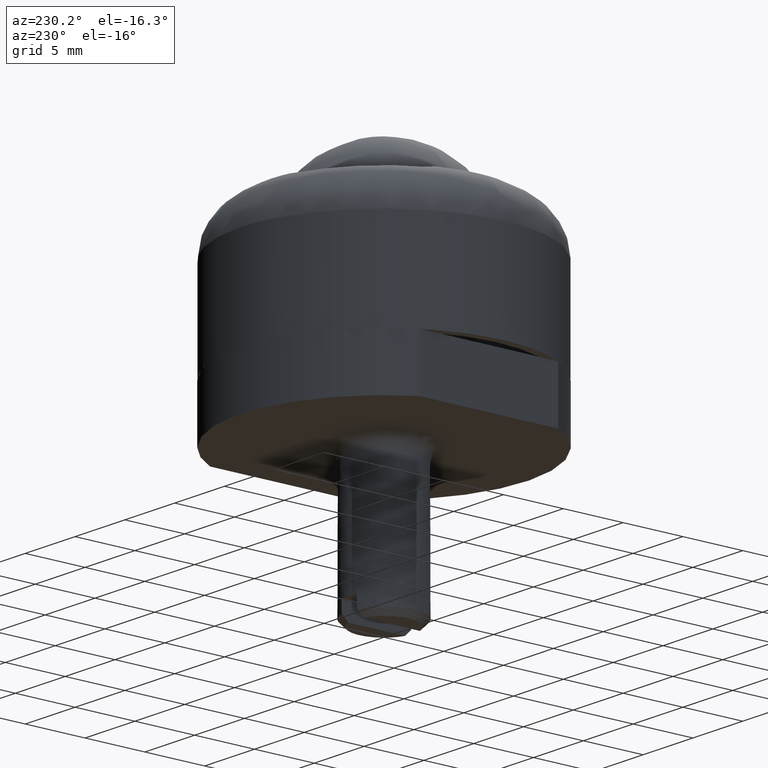
[diagram: clean part render]
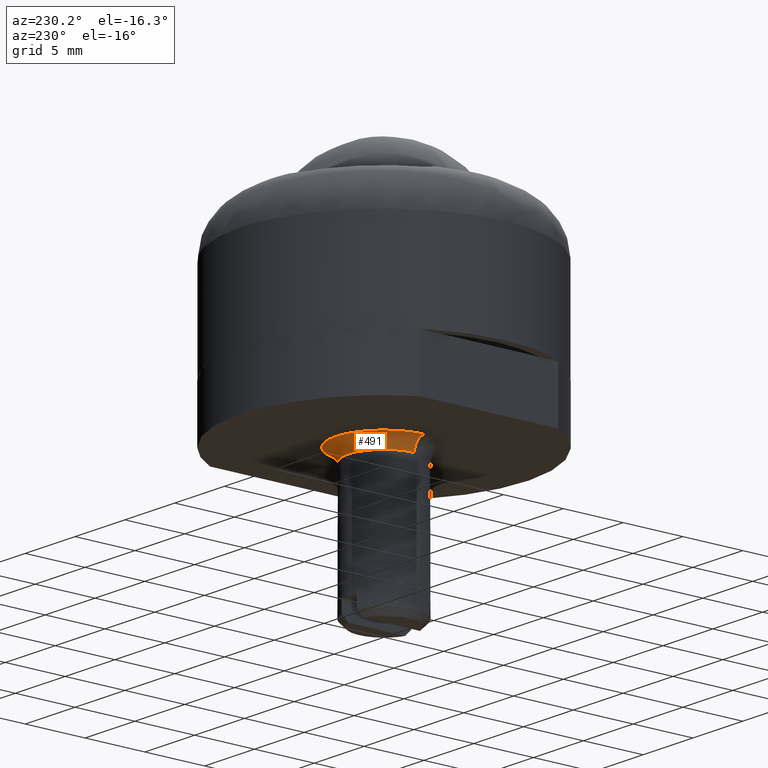
[diagram: same view with one face highlighted and labeled with its STEP entity id]
A machine part, auxiliary view. The second image highlights one B-rep face of the part: STEP entity #491.
In plain terms, the highlighted face is a freeform B-spline surface patch.
Its self-contained STEP definition (entity closure, byte-faithful):
#225=CARTESIAN_POINT('',(-3.999684176578704,-0.050264159600141,-4.499999999999900));
#226=VERTEX_POINT('',#225);
#227=CARTESIAN_POINT('',(-4.0,0.0,-4.499999999999900));
#228=VERTEX_POINT('',#227);
#229=CARTESIAN_POINT('',(-3.999684176578704,-0.050264159600141,-4.499999999999900));
#230=CARTESIAN_POINT('',(-4.0,0.0,-4.499999999999900));
#231=QUASI_UNIFORM_CURVE('',1,(#229,#230),.UNSPECIFIED.,.F.,.U.);
#232=EDGE_CURVE('',#226,#228,#231,.T.);
#266=CARTESIAN_POINT('',(3.999684176578705,0.050264159600142,-4.499999999999900));
#267=VERTEX_POINT('',#266);
#273=CARTESIAN_POINT('',(-0.025111303395536,3.999921177027848,-4.499999999999901));
#274=VERTEX_POINT('',#273);
#275=CARTESIAN_POINT('',(-0.025111303395536,3.999921177027848,-4.499999999999901));
#276=CARTESIAN_POINT('',(0.268229245587226,4.001813702505603,-4.499999999999893));
#277=CARTESIAN_POINT('',(0.757442024351810,3.950799599420539,-4.499999999999918));
#278=CARTESIAN_POINT('',(1.494041923563894,3.733347986264920,-4.499999999999888));
#279=CARTESIAN_POINT('',(2.124025821649318,3.417867584647329,-4.499999999999927));
#280=CARTESIAN_POINT('',(2.760246813083117,2.930419721423154,-4.499999999999860));
#281=CARTESIAN_POINT('',(3.280071558732422,2.339541667902940,-4.499999999999917));
#282=CARTESIAN_POINT('',(3.698499430529991,1.597927806407143,-4.499999999999889));
#283=CARTESIAN_POINT('',(3.940438110491915,0.831834402972941,-4.499999999999941));
#284=CARTESIAN_POINT('',(3.996630426323140,0.294695585230112,-4.499999999999830));
#285=CARTESIAN_POINT('',(3.999684176578705,0.050264159600142,-4.499999999999900));
#286=B_SPLINE_CURVE_WITH_KNOTS('',3,(#275,#276,#277,#278,#279,#280,#281,#282,#283,#284,#285),.UNSPECIFIED.,.F.,.U.,(4,1,1,1,1,1,1,1,4),(0.000000040040174,0.880031844306282,1.466734252800506,2.297886045216485,2.982381073107023,3.862392471147102,4.644661170695125,5.524712915542663,6.258070245550180),.UNSPECIFIED.);
#287=EDGE_CURVE('',#274,#267,#286,.T.);
#289=CARTESIAN_POINT('',(-4.0,0.0,-4.499999999999900));
#290=CARTESIAN_POINT('',(-4.000108567002863,0.342252779860697,-4.499999999999902));
#291=CARTESIAN_POINT('',(-3.936849724323132,0.831104101655851,-4.499999999999901));
#292=CARTESIAN_POINT('',(-3.711603100325258,1.530203738180509,-4.499999999999899));
#293=CARTESIAN_POINT('',(-3.421967735615791,2.117273015119177,-4.499999999999902));
#294=CARTESIAN_POINT('',(-2.937790394450533,2.757114263452005,-4.499999999999898));
#295=CARTESIAN_POINT('',(-2.318880406579954,3.294710794332514,-4.499999999999880));
#296=CARTESIAN_POINT('',(-1.631889649418648,3.676614104779366,-4.499999999999887));
#297=CARTESIAN_POINT('',(-0.872119220068966,3.931827543484185,-4.499999999999874));
#298=CARTESIAN_POINT('',(-0.334752290826727,3.998044781622780,-4.499999999999907));
#299=CARTESIAN_POINT('',(-0.025111303395536,3.999921177027848,-4.499999999999901));
#300=B_SPLINE_CURVE_WITH_KNOTS('',3,(#289,#290,#291,#292,#293,#294,#295,#296,#297,#298,#299),.UNSPECIFIED.,.F.,.U.,(4,1,1,1,1,1,1,1,4),(0.000000040039052,1.026720581050287,1.466744224700962,2.200126703708061,2.982401349740496,3.862418730299925,4.644692748443036,5.329183371206019,6.258112792421067),.UNSPECIFIED.);
#301=EDGE_CURVE('',#228,#274,#300,.T.);
#335=CARTESIAN_POINT('',(2.999763132611411,0.037698119653016,-5.499999999958122));
#336=VERTEX_POINT('',#335);
#344=CARTESIAN_POINT('',(2.999763132611411,0.037698119653016,-5.499999999958122));
#345=CARTESIAN_POINT('',(2.999651067471479,0.037696711330895,-5.377263110224252));
#346=CARTESIAN_POINT('',(3.036385334355335,0.038158352050629,-5.180998333675531));
#347=CARTESIAN_POINT('',(3.161495582910901,0.039730616575413,-4.939899777247685));
#348=CARTESIAN_POINT('',(3.331030081689882,0.041861162079976,-4.738299432446276));
#349=CARTESIAN_POINT('',(3.607107225877989,0.045330632434891,-4.553777601119346));
#350=CARTESIAN_POINT('',(3.860597068550744,0.048516247440971,-4.499830352767810));
#351=CARTESIAN_POINT('',(3.999684176578705,0.050264159600142,-4.499999999999900));
#352=B_SPLINE_CURVE_WITH_KNOTS('',3,(#344,#345,#346,#347,#348,#349,#350,#351),.UNSPECIFIED.,.F.,.U.,(4,1,1,1,1,4),(0.000000086228514,0.368163986574393,0.589074801624046,0.809950585924334,1.153581815551645,1.570835744183209),.UNSPECIFIED.);
#353=EDGE_CURVE('',#336,#267,#352,.T.);
#358=CARTESIAN_POINT('',(-2.999763132611411,-0.037698119653016,-5.499999999958124));
#359=VERTEX_POINT('',#358);
#360=CARTESIAN_POINT('',(-2.999763132611411,-0.037698119653016,-5.499999999958124));
#361=CARTESIAN_POINT('',(-2.999735124370926,-0.037697767675561,-5.410004063860336));
#362=CARTESIAN_POINT('',(-3.024216454522372,-0.038005425344821,-5.230028094015151));
#363=CARTESIAN_POINT('',(-3.125035834297195,-0.039272425740325,-4.994786115538280));
#364=CARTESIAN_POINT('',(-3.269581157128171,-0.041088931466790,-4.804828122325603));
#365=CARTESIAN_POINT('',(-3.439622924091197,-0.043225851824981,-4.661741526469281));
#366=CARTESIAN_POINT('',(-3.680705120425666,-0.046255539542913,-4.536623407301839));
#367=CARTESIAN_POINT('',(-3.876957747834677,-0.048721852623635,-4.499888627535637));
#368=CARTESIAN_POINT('',(-3.999684176578704,-0.050264159600141,-4.499999999999900));
#369=B_SPLINE_CURVE_WITH_KNOTS('',3,(#360,#361,#362,#363,#364,#365,#366,#367,#368),.UNSPECIFIED.,.F.,.U.,(4,1,1,1,1,1,4),(0.000000086228904,0.269986894572906,0.539979768443401,0.760885244488108,0.981761028787847,1.202671843837409,1.570835744183204),.UNSPECIFIED.);
#370=EDGE_CURVE('',#359,#226,#369,.T.);
#411=CARTESIAN_POINT('',(-3.001128809170596,-0.121659796228335,-5.569537109113147));
#412=CARTESIAN_POINT('',(-3.001653121234309,-0.079938564153337,-5.569537109113147));
#413=CARTESIAN_POINT('',(-3.039912113435770,2.964455038556122,-5.569537109113147));
#414=CARTESIAN_POINT('',(-0.037728537439824,3.002183575995947,-5.569537109113147));
#415=CARTESIAN_POINT('',(2.964455038556122,3.039912113435770,-5.569537109113147));
#416=CARTESIAN_POINT('',(3.002714030757240,-0.004481489246376,-5.569537109113148));
#417=CARTESIAN_POINT('',(3.003238342820619,-0.046202721294690,-5.569537109113147));
#418=CARTESIAN_POINT('',(-2.921205433762337,-0.118419861462343,-4.422462825982146));
#419=CARTESIAN_POINT('',(-2.921715782816608,-0.077809711885184,-4.422462825982146));
#420=CARTESIAN_POINT('',(-2.958955895792656,2.885508326171291,-4.422462825982145));
#421=CARTESIAN_POINT('',(-0.036723784810682,2.922232110981972,-4.422462825982147));
#422=CARTESIAN_POINT('',(2.885508326171291,2.958955895792656,-4.422462825982145));
#423=CARTESIAN_POINT('',(2.922748439147003,-0.004362142237233,-4.422462825982147));
#424=CARTESIAN_POINT('',(2.923258788200948,-0.044972291788421,-4.422462825982147));
#425=CARTESIAN_POINT('',(-4.067786172993729,-0.164899965437879,-4.502420636468137));
#426=CARTESIAN_POINT('',(-4.068496835380691,-0.108350226407571,-4.502420636468138));
#427=CARTESIAN_POINT('',(-4.120353789668765,4.018077857722075,-4.502420636468137));
#428=CARTESIAN_POINT('',(-0.051137965973345,4.069215823695418,-4.502420636468138));
#429=CARTESIAN_POINT('',(4.018077857722075,4.120353789668765,-4.502420636468137));
#430=CARTESIAN_POINT('',(4.069934812009683,-0.006074294423859,-4.502420636468138));
#431=CARTESIAN_POINT('',(4.070645474396189,-0.062624033418000,-4.502420636468138));
#439=(BOUNDED_SURFACE()B_SPLINE_SURFACE(2,2,((#411,#418,#425),(#412,#419,#426),(#413,#420,#427),(#414,#421,#428),(#415,#422,#429),(#416,#423,#430),(#417,#424,#431)),.UNSPECIFIED.,.F.,.F.,.U.)B_SPLINE_SURFACE_WITH_KNOTS((3,1,2,1,3),(3,3),(0.0,0.134852598069926,6.877482497373388,13.620112396676850,13.754964994659000),(0.0,1.822729993278182),.UNSPECIFIED.)GEOMETRIC_REPRESENTATION_ITEM()RATIONAL_B_SPLINE_SURFACE(((0.921146729411582,0.604479481456788,0.921146741244216),(0.915813262251289,0.600979527149313,0.915813274015412),(0.643806437242182,0.422481857576905,0.643806445512228),(0.910479795090997,0.597479572841838,0.910479806786608),(0.643806437242182,0.422481857576905,0.643806445512228),(0.915813262247818,0.600979527147035,0.915813274011940),(0.921146729404639,0.604479481452232,0.921146741237273)))REPRESENTATION_ITEM('')SURFACE());
#440=CARTESIAN_POINT('',(-3.0,0.0,-5.499999999999900));
#441=VERTEX_POINT('',#440);
#442=CARTESIAN_POINT('',(-0.018827169450561,2.999940922366719,-5.499999999979012));
#443=VERTEX_POINT('',#442);
#444=CARTESIAN_POINT('',(-3.0,0.0,-5.499999999999900));
#445=CARTESIAN_POINT('',(-3.000005406100510,0.158893767987867,-5.499999999999893));
#446=CARTESIAN_POINT('',(-2.971790278832519,0.513357102924545,-5.499999999999690));
#447=CARTESIAN_POINT('',(-2.831497331412967,1.047913126963966,-5.499999999998669));
#448=CARTESIAN_POINT('',(-2.541720841140370,1.644469434743058,-5.499999999996647));
#449=CARTESIAN_POINT('',(-2.136259236707701,2.141363536062894,-5.499999999993757));
#450=CARTESIAN_POINT('',(-1.673277785119184,2.505246701556205,-5.499999999990603));
#451=CARTESIAN_POINT('',(-1.255533449993442,2.737512229940488,-5.499999999987582));
#452=CARTESIAN_POINT('',(-0.715105462672909,2.937641822101899,-5.499999999983868));
#453=CARTESIAN_POINT('',(-0.287734183270057,2.998352713462475,-5.499999999980914));
#454=CARTESIAN_POINT('',(-0.018827169450561,2.999940922366719,-5.499999999979012));
#455=B_SPLINE_CURVE_WITH_KNOTS('',3,(#444,#445,#446,#447,#448,#449,#450,#451,#452,#453,#454),.UNSPECIFIED.,.F.,.U.,(4,1,1,1,1,1,1,1,4),(0.000000055800510,0.476686287619601,1.063389958927537,1.650099848089952,2.456791239874141,2.970160617740572,3.410185101840112,3.886887106407462,4.693590902618725),.UNSPECIFIED.);
#456=EDGE_CURVE('',#441,#443,#455,.T.);
#457=ORIENTED_EDGE('',*,*,#456,.F.);
#458=CARTESIAN_POINT('',(-2.999763132611411,-0.037698119653016,-5.499999999958124));
#459=CARTESIAN_POINT('',(-3.0,0.0,-5.499999999999900));
#460=QUASI_UNIFORM_CURVE('',1,(#458,#459),.UNSPECIFIED.,.F.,.U.);
#461=EDGE_CURVE('',#359,#441,#460,.T.);
#462=ORIENTED_EDGE('',*,*,#461,.F.);
#463=ORIENTED_EDGE('',*,*,#370,.T.);
#464=ORIENTED_EDGE('',*,*,#232,.T.);
#465=ORIENTED_EDGE('',*,*,#301,.T.);
#466=ORIENTED_EDGE('',*,*,#287,.T.);
#467=ORIENTED_EDGE('',*,*,#353,.F.);
#468=CARTESIAN_POINT('',(2.297376269999672,1.929264697765029,-5.499999999962931));
#469=VERTEX_POINT('',#468);
#470=CARTESIAN_POINT('',(2.297376269999672,1.929264697765029,-5.499999999962931));
#471=CARTESIAN_POINT('',(2.469767599310737,1.724114307573576,-5.499999999961766));
#472=CARTESIAN_POINT('',(2.677943554289564,1.395147220831007,-5.499999999960282));
#473=CARTESIAN_POINT('',(2.927467140380811,0.754883511479545,-5.499999999958621));
#474=CARTESIAN_POINT('',(2.996150645881269,0.337810904542969,-5.499999999958120));
#475=CARTESIAN_POINT('',(2.999763132611411,0.037698119653016,-5.499999999958122));
#476=B_SPLINE_CURVE_WITH_KNOTS('',3,(#470,#471,#472,#473,#474,#475),.UNSPECIFIED.,.F.,.U.,(4,1,1,4),(0.000000010735532,0.803865669110995,1.157552292472079,2.057883340172767),.UNSPECIFIED.);
#477=EDGE_CURVE('',#469,#336,#476,.T.);
#478=ORIENTED_EDGE('',*,*,#477,.F.);
#479=CARTESIAN_POINT('',(-0.018827169450561,2.999940922366719,-5.499999999979012));
#480=CARTESIAN_POINT('',(0.296915722511849,3.002086142390902,-5.499999999976811));
#481=CARTESIAN_POINT('',(0.805215183746494,2.924170807817369,-5.499999999973292));
#482=CARTESIAN_POINT('',(1.388116972568924,2.673822513733708,-5.499999999969218));
#483=CARTESIAN_POINT('',(1.864860195800707,2.372665709232652,-5.499999999965962));
#484=CARTESIAN_POINT('',(2.138523608921543,2.118539038041905,-5.499999999964021));
#485=CARTESIAN_POINT('',(2.297376269999672,1.929264697765029,-5.499999999962931));
#486=B_SPLINE_CURVE_WITH_KNOTS('',3,(#479,#480,#481,#482,#483,#484,#485),.UNSPECIFIED.,.F.,.U.,(4,1,1,1,4),(0.000000018069539,0.947192901376483,1.523740927119760,1.894383352985515,2.635664363731284),.UNSPECIFIED.);
#487=EDGE_CURVE('',#443,#469,#486,.T.);
#488=ORIENTED_EDGE('',*,*,#487,.F.);
#489=EDGE_LOOP('',(#457,#462,#463,#464,#465,#466,#467,#478,#488));
#490=FACE_OUTER_BOUND('',#489,.T.);
#491=ADVANCED_FACE('',(#490),#439,.F.);